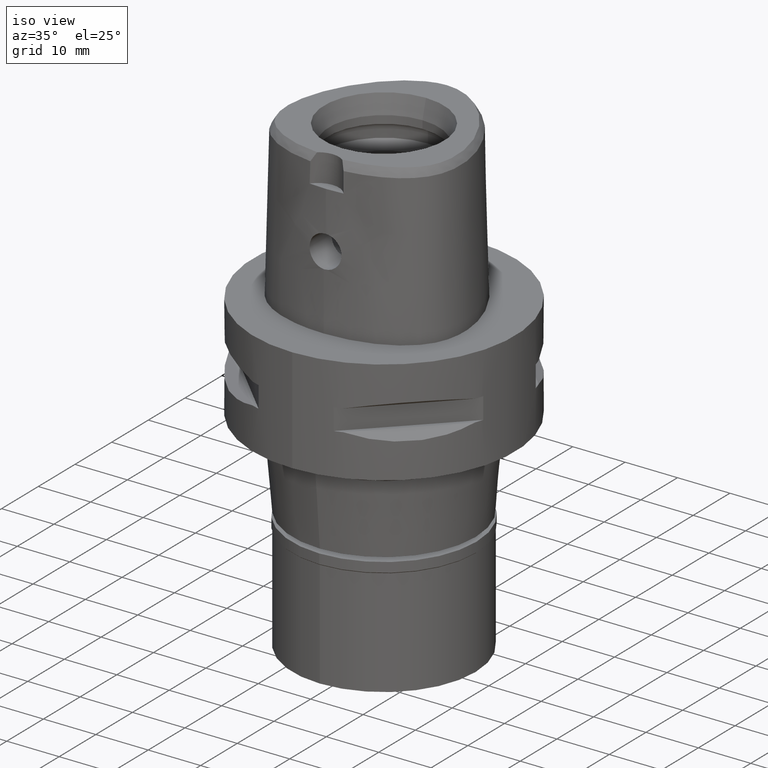
[diagram: clean part render]
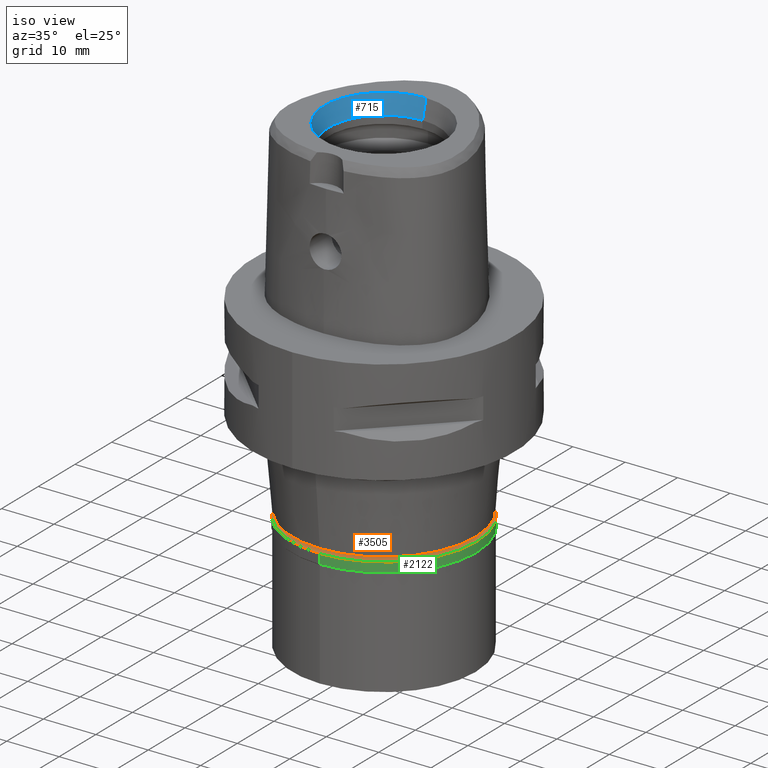
[diagram: same view with three faces highlighted in distinct colors, each labeled with its STEP entity id]
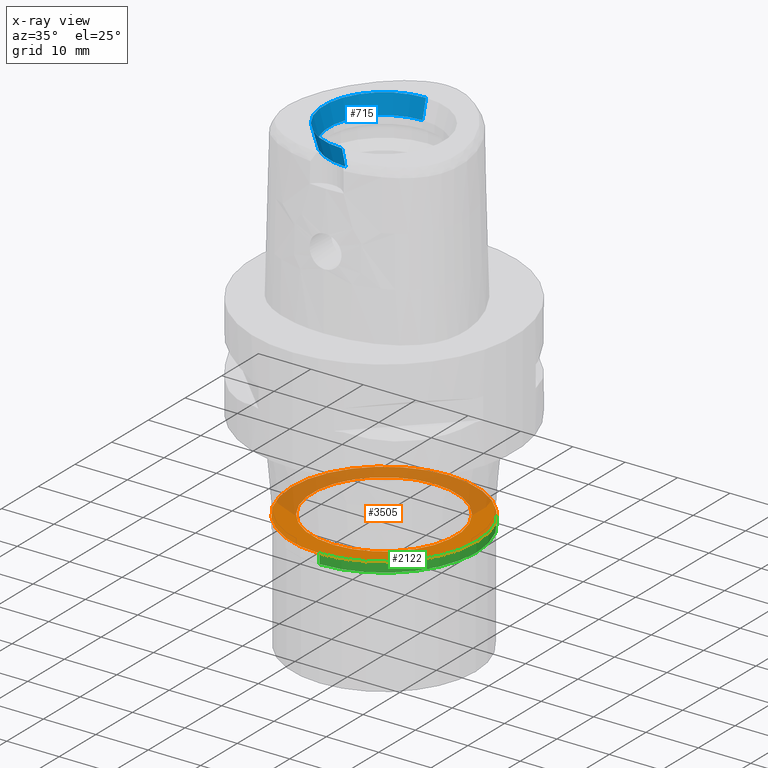
[diagram: x-ray of the same camera — body ghosted, the three highlighted faces saturated]
A machine part, iso view with three faces highlighted in distinct colors.
The next image is the same camera in x-ray (body ghosted, the three faces saturated) — at least one of them is partly hidden behind the body in this view.
Their STEP definitions:

[orange] entity #3505 — the highlighted planar face has unit normal (0, 0, -1).
#48 = EDGE_LOOP ( 'NONE', ( #3220, #2221 ) ) ;
#127 = EDGE_CURVE ( 'NONE', #981, #4698, #362, .T. ) ;
#181 = ORIENTED_EDGE ( 'NONE', *, *, #1107, .F. ) ;
#362 = CIRCLE ( 'NONE', #3539, 17.64999999999999858 ) ;
#447 = DIRECTION ( 'NONE',  ( 0.0000000000000000000, -1.000000000000000000, 0.0000000000000000000 ) ) ;
#533 = AXIS2_PLACEMENT_3D ( 'NONE', #928, #2618, #4748 ) ;
#549 = CARTESIAN_POINT ( 'NONE',  ( 0.0000000000000000000, 0.0000000000000000000, 0.0000000000000000000 ) ) ;
#881 = EDGE_LOOP ( 'NONE', ( #181, #3370 ) ) ;
#928 = CARTESIAN_POINT ( 'NONE',  ( 0.0000000000000000000, 0.0000000000000000000, 0.0000000000000000000 ) ) ;
#944 = VERTEX_POINT ( 'NONE', #1808 ) ;
#967 = CIRCLE ( 'NONE', #1514, 13.75000000000000000 ) ;
#981 = VERTEX_POINT ( 'NONE', #4516 ) ;
#1026 = FACE_OUTER_BOUND ( 'NONE', #881, .T. ) ;
#1067 = CIRCLE ( 'NONE', #4394, 13.75000000000000000 ) ;
#1107 = EDGE_CURVE ( 'NONE', #4698, #981, #1991, .T. ) ;
#1514 = AXIS2_PLACEMENT_3D ( 'NONE', #2250, #1573, #3417 ) ;
#1573 = DIRECTION ( 'NONE',  ( 0.0000000000000000000, 0.0000000000000000000, 1.000000000000000000 ) ) ;
#1664 = DIRECTION ( 'NONE',  ( 0.0000000000000000000, 0.0000000000000000000, 1.000000000000000000 ) ) ;
#1807 = CARTESIAN_POINT ( 'NONE',  ( 0.0000000000000000000, -13.75000000000000000, 0.0000000000000000000 ) ) ;
#1808 = CARTESIAN_POINT ( 'NONE',  ( 0.0000000000000000000, 13.75000000000000000, 0.0000000000000000000 ) ) ;
#1935 = VERTEX_POINT ( 'NONE', #1807 ) ;
#1991 = CIRCLE ( 'NONE', #2754, 17.64999999999999858 ) ;
#2046 = FACE_BOUND ( 'NONE', #48, .T. ) ;
#2102 = CARTESIAN_POINT ( 'NONE',  ( 0.0000000000000000000, 17.64999999999999858, 0.0000000000000000000 ) ) ;
#2221 = ORIENTED_EDGE ( 'NONE', *, *, #3196, .F. ) ;
#2250 = CARTESIAN_POINT ( 'NONE',  ( 0.0000000000000000000, 0.0000000000000000000, 0.0000000000000000000 ) ) ;
#2328 = CARTESIAN_POINT ( 'NONE',  ( 0.0000000000000000000, 0.0000000000000000000, 0.0000000000000000000 ) ) ;
#2618 = DIRECTION ( 'NONE',  ( 0.0000000000000000000, 0.0000000000000000000, -1.000000000000000000 ) ) ;
#2754 = AXIS2_PLACEMENT_3D ( 'NONE', #549, #3841, #3506 ) ;
#3196 = EDGE_CURVE ( 'NONE', #1935, #944, #1067, .T. ) ;
#3220 = ORIENTED_EDGE ( 'NONE', *, *, #4122, .F. ) ;
#3370 = ORIENTED_EDGE ( 'NONE', *, *, #127, .F. ) ;
#3417 = DIRECTION ( 'NONE',  ( 0.0000000000000000000, 1.000000000000000000, 0.0000000000000000000 ) ) ;
#3505 = ADVANCED_FACE ( 'NONE', ( #1026, #2046 ), #3978, .F. ) ;
#3506 = DIRECTION ( 'NONE',  ( 0.0000000000000000000, 1.000000000000000000, 0.0000000000000000000 ) ) ;
#3539 = AXIS2_PLACEMENT_3D ( 'NONE', #2328, #3763, #447 ) ;
#3607 = CARTESIAN_POINT ( 'NONE',  ( 0.0000000000000000000, 0.0000000000000000000, 0.0000000000000000000 ) ) ;
#3763 = DIRECTION ( 'NONE',  ( 0.0000000000000000000, 0.0000000000000000000, -1.000000000000000000 ) ) ;
#3841 = DIRECTION ( 'NONE',  ( 0.0000000000000000000, 0.0000000000000000000, -1.000000000000000000 ) ) ;
#3978 = PLANE ( 'NONE',  #533 ) ;
#4122 = EDGE_CURVE ( 'NONE', #944, #1935, #967, .T. ) ;
#4394 = AXIS2_PLACEMENT_3D ( 'NONE', #3607, #1664, #4712 ) ;
#4516 = CARTESIAN_POINT ( 'NONE',  ( 0.0000000000000000000, -17.64999999999999858, 0.0000000000000000000 ) ) ;
#4698 = VERTEX_POINT ( 'NONE', #2102 ) ;
#4712 = DIRECTION ( 'NONE',  ( 0.0000000000000000000, -1.000000000000000000, 0.0000000000000000000 ) ) ;
#4748 = DIRECTION ( 'NONE',  ( 0.0000000000000000000, -1.000000000000000000, 0.0000000000000000000 ) ) ;

[blue] entity #715 — the highlighted conical surface has half-angle 15 deg.
#12 = EDGE_CURVE ( 'NONE', #3609, #466, #4533, .T. ) ;
#466 = VERTEX_POINT ( 'NONE', #3856 ) ;
#495 = DIRECTION ( 'NONE',  ( 0.0000000000000000000, 1.000000000000000000, 0.0000000000000000000 ) ) ;
#502 = DIRECTION ( 'NONE',  ( 0.0000000000000000000, 1.000000000000000000, 0.0000000000000000000 ) ) ;
#715 = ADVANCED_FACE ( 'NONE', ( #1888 ), #2449, .F. ) ;
#964 = VERTEX_POINT ( 'NONE', #4132 ) ;
#1055 = CARTESIAN_POINT ( 'NONE',  ( 0.0000000000000000000, 1.570609519905999910E-14, 26.50000000000000000 ) ) ;
#1071 = CARTESIAN_POINT ( 'NONE',  ( 0.0000000000000000000, 10.50000000000000000, 26.50000000000000000 ) ) ;
#1119 = LINE ( 'NONE', #1071, #4628 ) ;
#1597 = DIRECTION ( 'NONE',  ( 0.0000000000000000000, 0.0000000000000000000, 1.000000000000000000 ) ) ;
#1652 = VERTEX_POINT ( 'NONE', #3808 ) ;
#1698 = EDGE_CURVE ( 'NONE', #964, #466, #3126, .T. ) ;
#1888 = FACE_OUTER_BOUND ( 'NONE', #3326, .T. ) ;
#1895 = AXIS2_PLACEMENT_3D ( 'NONE', #1055, #3584, #3532 ) ;
#2007 = CARTESIAN_POINT ( 'NONE',  ( 0.0000000000000000000, 1.570609519905999910E-14, 30.00000000000000000 ) ) ;
#2044 = DIRECTION ( 'NONE',  ( 0.0000000000000000000, -0.2588190451023999472, 0.9659258262891006197 ) ) ;
#2187 = DIRECTION ( 'NONE',  ( 0.0000000000000000000, 0.2588190451023999472, 0.9659258262891006197 ) ) ;
#2449 = CONICAL_SURFACE ( 'NONE', #4771, 10.96891108674999948, 0.2617993877991000029 ) ;
#2668 = CIRCLE ( 'NONE', #1895, 10.50000000000000000 ) ;
#2743 = DIRECTION ( 'NONE',  ( 0.0000000000000000000, 0.0000000000000000000, 1.000000000000000000 ) ) ;
#2835 = ORIENTED_EDGE ( 'NONE', *, *, #4741, .F. ) ;
#2969 = ORIENTED_EDGE ( 'NONE', *, *, #1698, .F. ) ;
#3126 = LINE ( 'NONE', #4600, #3848 ) ;
#3326 = EDGE_LOOP ( 'NONE', ( #2969, #2835, #4770, #3403 ) ) ;
#3403 = ORIENTED_EDGE ( 'NONE', *, *, #12, .T. ) ;
#3439 = CARTESIAN_POINT ( 'NONE',  ( 0.0000000000000000000, 1.570609519905999910E-14, 28.25000000000000000 ) ) ;
#3532 = DIRECTION ( 'NONE',  ( 0.0000000000000000000, 1.000000000000000000, 0.0000000000000000000 ) ) ;
#3584 = DIRECTION ( 'NONE',  ( 0.0000000000000000000, 0.0000000000000000000, 1.000000000000000000 ) ) ;
#3609 = VERTEX_POINT ( 'NONE', #4071 ) ;
#3616 = AXIS2_PLACEMENT_3D ( 'NONE', #2007, #2743, #495 ) ;
#3663 = EDGE_CURVE ( 'NONE', #1652, #3609, #1119, .T. ) ;
#3808 = CARTESIAN_POINT ( 'NONE',  ( 0.0000000000000000000, 10.50000000000000000, 26.50000000000000000 ) ) ;
#3848 = VECTOR ( 'NONE', #2044, 1000.000000000000114 ) ;
#3856 = CARTESIAN_POINT ( 'NONE',  ( 0.0000000000000000000, -11.43782217350000074, 30.00000000000000000 ) ) ;
#4071 = CARTESIAN_POINT ( 'NONE',  ( 0.0000000000000000000, 11.43782217350000074, 30.00000000000000000 ) ) ;
#4132 = CARTESIAN_POINT ( 'NONE',  ( 0.0000000000000000000, -10.50000000000000000, 26.50000000000000000 ) ) ;
#4533 = CIRCLE ( 'NONE', #3616, 11.43782217350000074 ) ;
#4600 = CARTESIAN_POINT ( 'NONE',  ( 0.0000000000000000000, -10.50000000000000000, 26.50000000000000000 ) ) ;
#4628 = VECTOR ( 'NONE', #2187, 1000.000000000000114 ) ;
#4741 = EDGE_CURVE ( 'NONE', #1652, #964, #2668, .T. ) ;
#4770 = ORIENTED_EDGE ( 'NONE', *, *, #3663, .T. ) ;
#4771 = AXIS2_PLACEMENT_3D ( 'NONE', #3439, #1597, #502 ) ;

[green] entity #2122 — the highlighted cylindrical surface (partial cylindrical patch) has radius 17.65 mm, axis along (0, 0, -1).
#151 = LINE ( 'NONE', #1650, #4165 ) ;
#228 = CARTESIAN_POINT ( 'NONE',  ( 0.0000000000000000000, 0.0000000000000000000, 0.0000000000000000000 ) ) ;
#365 = VERTEX_POINT ( 'NONE', #4102 ) ;
#438 = VERTEX_POINT ( 'NONE', #4630 ) ;
#549 = CARTESIAN_POINT ( 'NONE',  ( 0.0000000000000000000, 0.0000000000000000000, 0.0000000000000000000 ) ) ;
#566 = DIRECTION ( 'NONE',  ( 0.0000000000000000000, 0.0000000000000000000, -1.000000000000000000 ) ) ;
#631 = EDGE_CURVE ( 'NONE', #438, #365, #1525, .T. ) ;
#634 = DIRECTION ( 'NONE',  ( 0.0000000000000000000, 0.0000000000000000000, -1.000000000000000000 ) ) ;
#868 = DIRECTION ( 'NONE',  ( 0.0000000000000000000, -1.000000000000000000, 0.0000000000000000000 ) ) ;
#981 = VERTEX_POINT ( 'NONE', #4516 ) ;
#1003 = DIRECTION ( 'NONE',  ( 0.0000000000000000000, -1.000000000000000000, 0.0000000000000000000 ) ) ;
#1107 = EDGE_CURVE ( 'NONE', #4698, #981, #1991, .T. ) ;
#1263 = FACE_OUTER_BOUND ( 'NONE', #4758, .T. ) ;
#1525 = CIRCLE ( 'NONE', #2140, 17.64999999999999858 ) ;
#1649 = DIRECTION ( 'NONE',  ( 0.0000000000000000000, 0.0000000000000000000, 1.000000000000000000 ) ) ;
#1650 = CARTESIAN_POINT ( 'NONE',  ( 0.0000000000000000000, 17.64999999999999858, 0.0000000000000000000 ) ) ;
#1991 = CIRCLE ( 'NONE', #2754, 17.64999999999999858 ) ;
#2102 = CARTESIAN_POINT ( 'NONE',  ( 0.0000000000000000000, 17.64999999999999858, 0.0000000000000000000 ) ) ;
#2122 = ADVANCED_FACE ( 'NONE', ( #1263 ), #3175, .T. ) ;
#2140 = AXIS2_PLACEMENT_3D ( 'NONE', #3099, #1649, #868 ) ;
#2470 = LINE ( 'NONE', #3952, #3566 ) ;
#2659 = EDGE_CURVE ( 'NONE', #4698, #365, #151, .T. ) ;
#2740 = ORIENTED_EDGE ( 'NONE', *, *, #1107, .T. ) ;
#2754 = AXIS2_PLACEMENT_3D ( 'NONE', #549, #3841, #3506 ) ;
#3099 = CARTESIAN_POINT ( 'NONE',  ( 0.0000000000000000000, 0.0000000000000000000, -1.850000000000000089 ) ) ;
#3122 = DIRECTION ( 'NONE',  ( 0.0000000000000000000, 0.0000000000000000000, -1.000000000000000000 ) ) ;
#3164 = ORIENTED_EDGE ( 'NONE', *, *, #2659, .F. ) ;
#3175 = CYLINDRICAL_SURFACE ( 'NONE', #4158, 17.64999999999999858 ) ;
#3506 = DIRECTION ( 'NONE',  ( 0.0000000000000000000, 1.000000000000000000, 0.0000000000000000000 ) ) ;
#3566 = VECTOR ( 'NONE', #634, 1000.000000000000000 ) ;
#3739 = ORIENTED_EDGE ( 'NONE', *, *, #4036, .T. ) ;
#3841 = DIRECTION ( 'NONE',  ( 0.0000000000000000000, 0.0000000000000000000, -1.000000000000000000 ) ) ;
#3952 = CARTESIAN_POINT ( 'NONE',  ( 0.0000000000000000000, -17.64999999999999858, 0.0000000000000000000 ) ) ;
#3953 = ORIENTED_EDGE ( 'NONE', *, *, #631, .T. ) ;
#4036 = EDGE_CURVE ( 'NONE', #981, #438, #2470, .T. ) ;
#4102 = CARTESIAN_POINT ( 'NONE',  ( 0.0000000000000000000, 17.64999999999999858, -1.850000000000000089 ) ) ;
#4158 = AXIS2_PLACEMENT_3D ( 'NONE', #228, #566, #1003 ) ;
#4165 = VECTOR ( 'NONE', #3122, 1000.000000000000000 ) ;
#4516 = CARTESIAN_POINT ( 'NONE',  ( 0.0000000000000000000, -17.64999999999999858, 0.0000000000000000000 ) ) ;
#4630 = CARTESIAN_POINT ( 'NONE',  ( 0.0000000000000000000, -17.64999999999999858, -1.850000000000000089 ) ) ;
#4698 = VERTEX_POINT ( 'NONE', #2102 ) ;
#4758 = EDGE_LOOP ( 'NONE', ( #2740, #3739, #3953, #3164 ) ) ;